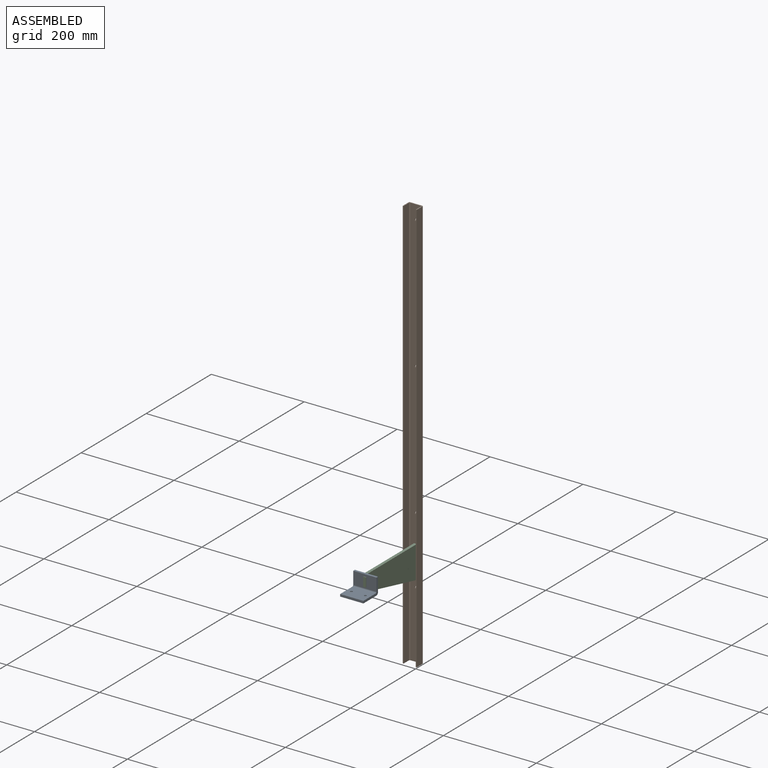
[diagram: assembled view]
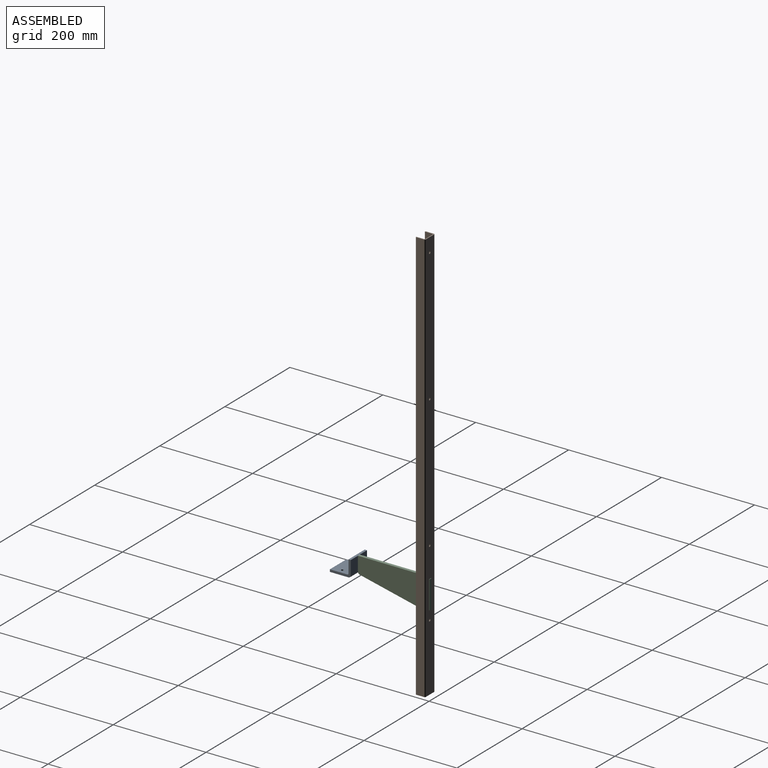
[diagram: assembled view, second angle]
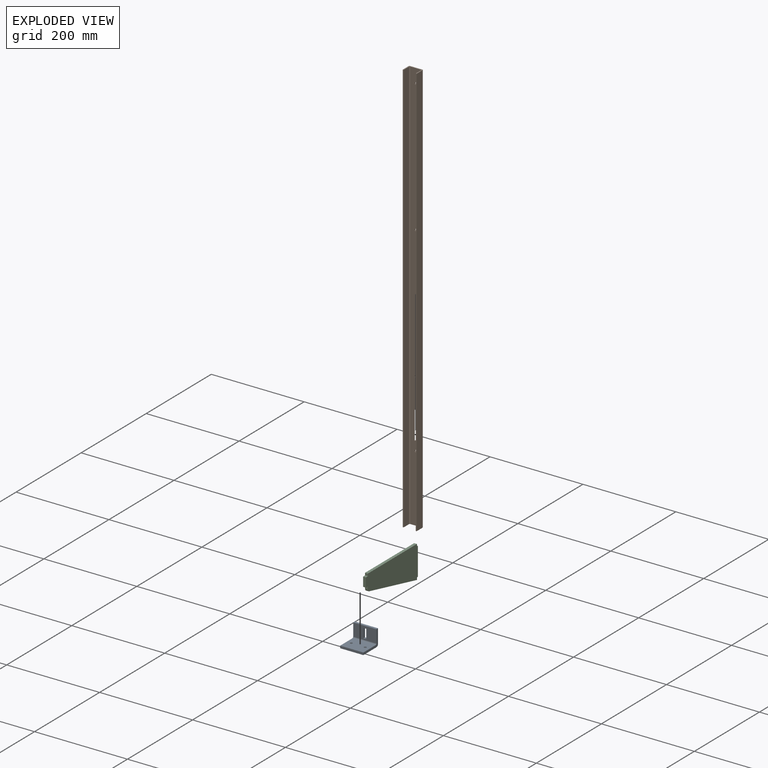
[diagram: exploded view]
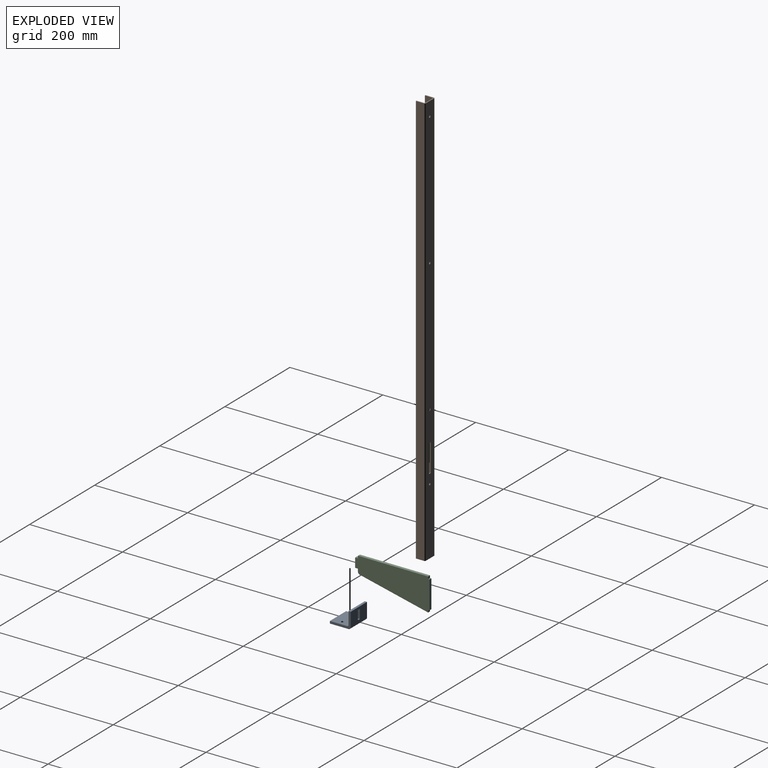
[diagram: exploded view, second angle]
ASSEMBLY  parts=3 mates=2
PART A: 16 faces, bbox 50x45x35 mm
  f0: plane 50x5mm, normal (0,0,1), area 250mm2, adj f1,f5,f6,f7
  f1: plane 50x30mm, normal (0,-1,0), area 1380mm2, adj f0,f6,f7,f8,f9,f10,f11,f14
  f2: plane 50x40mm, normal (0,0,-1), area 1960.7mm2, adj f3,f6,f7,f12,f13,f14
  f3: plane 50x5mm, normal (0,1,0), area 250mm2, adj f2,f4,f6,f7
  f4: plane 50x37.5mm, normal (0,0,1), area 1835.7mm2, adj f3,f6,f7,f12,f13,f15
  f5: plane 50x27.5mm, normal (0,1,0), area 1255mm2, adj f0,f6,f7,f8,f9,f10,f11,f15
  f6: plane 45x35mm, normal (1,0,0), area 371mm2, adj f0,f1,f2,f3,f4,f5,f14,f15
  f7: plane 45x35mm, normal (-1,0,0), area 371mm2, adj f0,f1,f2,f3,f4,f5,f14,f15
  f8: plane 20x5mm, normal (-1,0,0), area 100mm2, adj f1,f5,f9,f10
  f9: plane 6x5mm, normal (0,0,-1), area 30mm2, adj f1,f5,f8,f11
  f10: plane 6x5mm, normal (0,0,1), area 30mm2, adj f1,f5,f8,f11
  f11: plane 20x5mm, normal (1,0,0), area 100mm2, adj f1,f5,f9,f10
  f12: cylinder r=2.5mm len=5mm, axis (0,0,1), area 78.5mm2, adj f2,f4
  f13: cylinder r=2.5mm len=5mm, axis (0,0,1), area 78.5mm2, adj f2,f4
  f14: cylinder r=5mm len=50mm, axis (-1,0,0), area 392.7mm2, adj f1,f2,f6,f7
  f15: cylinder r=2.5mm len=50mm, axis (1,0,0), area 196.3mm2, adj f4,f5,f6,f7
PART B: 22 faces, bbox 30x20x890 mm
  f0: plane 890x26mm, normal (0,1,0), area 22701.5mm2, adj f8,f9,f10,f11,f12,f13,f14,f15
  f1: plane 890x18mm, normal (-1,0,0), area 16020mm2, adj f2,f8,f9,f18
  f2: plane 890x2mm, normal (0,-1,0), area 1780mm2, adj f1,f3,f8,f9
  f3: plane 890x16mm, normal (1,0,0), area 14240mm2, adj f2,f8,f9,f19
  f4: plane 890x22mm, normal (0,-1,0), area 19141.5mm2, adj f8,f9,f10,f11,f12,f13,f14,f15
  f5: plane 890x16mm, normal (-1,0,0), area 14240mm2, adj f6,f8,f9,f20
  f6: plane 890x2mm, normal (0,-1,0), area 1780mm2, adj f5,f7,f8,f9
  f7: plane 890x18mm, normal (1,0,0), area 16020mm2, adj f6,f8,f9,f21
  f8: plane 30x20mm, normal (0,0,1), area 132mm2, adj f0,f1,f2,f3,f4,f5,f6,f7
  f9: plane 30x20mm, normal (0,0,-1), area 132mm2, adj f0,f1,f2,f3,f4,f5,f6,f7
  f10: plane 60x2mm, normal (1,0,0), area 120mm2, adj f0,f4,f11,f12
  f11: plane 6x2mm, normal (0,0,1), area 12mm2, adj f0,f4,f10,f13
  f12: plane 6x2mm, normal (0,0,-1), area 12mm2, adj f0,f4,f10,f13
  f13: plane 60x2mm, normal (-1,0,0), area 120mm2, adj f0,f4,f11,f12
  f14: cylinder r=2.5mm len=5mm, axis (0,-1,0), area 31.4mm2, adj f0,f4
  f15: cylinder r=2.5mm len=5mm, axis (0,-1,0), area 31.4mm2, adj f0,f4
  f16: cylinder r=2.5mm len=5mm, axis (0,-1,0), area 31.4mm2, adj f0,f4
  f17: cylinder r=2.5mm len=5mm, axis (0,-1,0), area 31.4mm2, adj f0,f4
  f18: cylinder r=2mm len=890mm, axis (0,0,1), area 2796mm2, adj f0,f1,f8,f9
  f19: cylinder r=2mm len=890mm, axis (0,0,-1), area 2796mm2, adj f3,f4,f8,f9
  f20: cylinder r=2mm len=890mm, axis (0,0,1), area 2796mm2, adj f4,f5,f8,f9
  f21: cylinder r=2mm len=890mm, axis (0,0,-1), area 2796mm2, adj f0,f7,f8,f9
PART C: 15 faces, bbox 160x6x70 mm
  f0: plane 6x6mm, normal (0,0,1), area 36mm2, adj f1,f11,f12,f13
  f1: plane 6x5mm, normal (1,0,0), area 30mm2, adj f0,f2,f12,f13
  f2: plane 151x6mm, normal (0,0,1), area 906mm2, adj f1,f3,f12,f13
  f3: plane 6x5mm, normal (-1,0,0), area 30mm2, adj f2,f4,f12,f13
  f4: plane 6x3mm, normal (0,0,1), area 18mm2, adj f3,f5,f12,f13
  f5: plane 60x6mm, normal (-1,0,0), area 360mm2, adj f4,f6,f12,f13
  f6: plane 6x3mm, normal (0,0,-1), area 18mm2, adj f5,f7,f12,f13
  f7: plane 6x5mm, normal (-1,0,0), area 30mm2, adj f6,f8,f12,f13
  f8: plane 147.13x34.1mm, normal (0.23,0,-0.97), area 906.2mm2, adj f7,f12,f13,f14
  f9: plane 6.03x6mm, normal (1,0,0), area 36.2mm2, adj f10,f12,f13,f14
  f10: plane 6x6mm, normal (0,0,-1), area 36mm2, adj f9,f11,f12,f13
  f11: plane 20x6mm, normal (1,0,0), area 120mm2, adj f0,f10,f12,f13
  f12: plane 160x70mm, normal (0,-1,0), area 8224.4mm2, adj f0,f1,f2,f3,f4,f5,f6,f7
  f13: plane 160x70mm, normal (0,1,0), area 8224.4mm2, adj f0,f1,f2,f3,f4,f5,f6,f7
  f14: cylinder r=5mm len=6mm, axis (0,1,0), area 40.3mm2, adj f8,f9,f12,f13
PLACE A rot(axis=(0,0,-1),180deg) t=(25,-156,200)mm
PLACE B t=(0.81,-28.43,0)mm fixed
PLACE C rot(axis=(0,0,-1),90deg) t=(3,-75.5,195)mm
MATE fastened A.f9 <-> C.f0  axis (0,0,1) through (-3,-151,225)mm
MATE fastened C.f4 <-> B.f12  axis (0,0,1) through (3,0,225)mm
